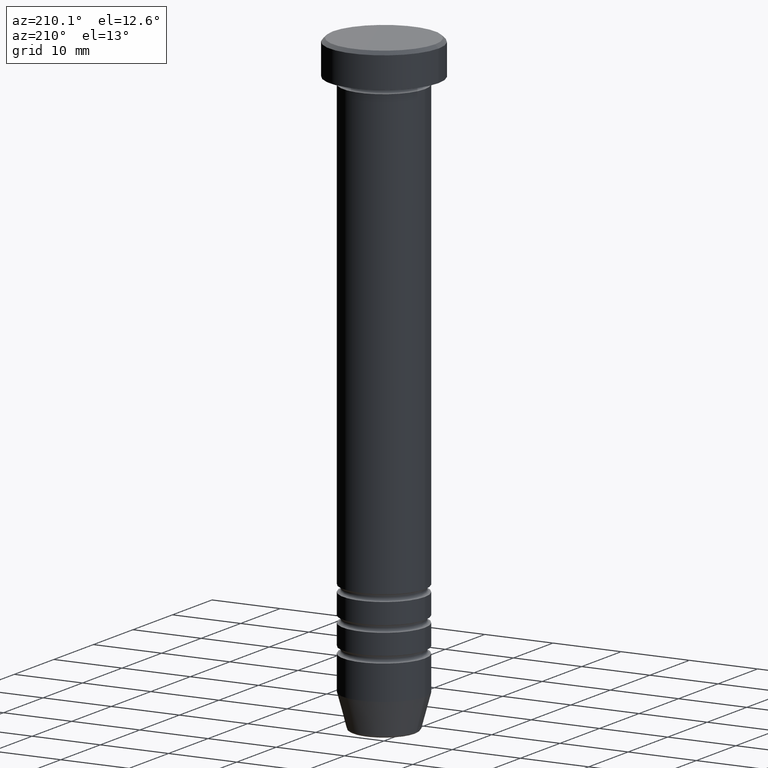
[diagram: clean part render]
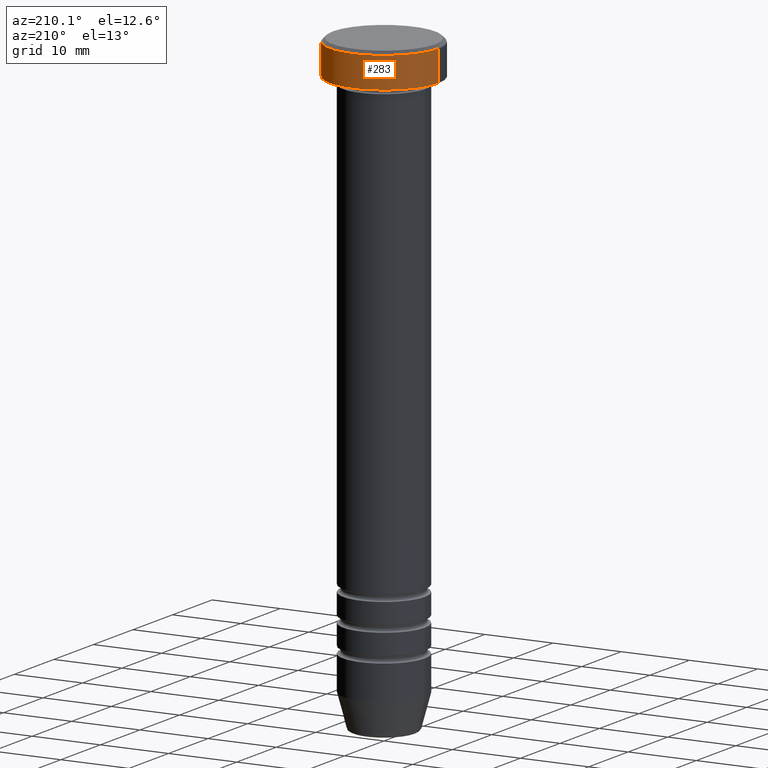
[diagram: same view with one face highlighted and labeled with its STEP entity id]
A machine part, auxiliary view. The second image highlights one B-rep face of the part: STEP entity #283.
In plain terms, the highlighted cylindrical surface (partial cylindrical patch) has radius 8 mm, axis along (-0, -0, 1).
Its self-contained STEP definition (entity closure, byte-faithful):
#19 = CARTESIAN_POINT ( 'NONE',  ( 8.000000000000000000, 0.000000000000000000, -5.000000000000000000 ) ) ;
#66 = CARTESIAN_POINT ( 'NONE',  ( 0.000000000000000000, 0.000000000000000000, 0.000000000000000000 ) ) ;
#148 = CARTESIAN_POINT ( 'NONE',  ( 0.000000000000000000, 0.000000000000000000, -0.4999999999999935052 ) ) ;
#192 = CIRCLE ( 'NONE', #804, 8.000000000000000000 ) ;
#220 = CIRCLE ( 'NONE', #962, 8.000000000000000000 ) ;
#233 = DIRECTION ( 'NONE',  ( 1.000000000000000000, 0.000000000000000000, 0.000000000000000000 ) ) ;
#246 = FACE_OUTER_BOUND ( 'NONE', #663, .T. ) ;
#248 = DIRECTION ( 'NONE',  ( -0.000000000000000000, -0.000000000000000000, 1.000000000000000000 ) ) ;
#251 = VERTEX_POINT ( 'NONE', #1052 ) ;
#271 = EDGE_CURVE ( 'NONE', #711, #251, #192, .T. ) ;
#283 = ADVANCED_FACE ( 'NONE', ( #246 ), #908, .T. ) ;
#321 = DIRECTION ( 'NONE',  ( 0.000000000000000000, 0.000000000000000000, -1.000000000000000000 ) ) ;
#347 = ORIENTED_EDGE ( 'NONE', *, *, #552, .T. ) ;
#355 = LINE ( 'NONE', #989, #716 ) ;
#383 = EDGE_CURVE ( 'NONE', #756, #251, #438, .T. ) ;
#388 = DIRECTION ( 'NONE',  ( -0.000000000000000000, -0.000000000000000000, 1.000000000000000000 ) ) ;
#438 = LINE ( 'NONE', #778, #560 ) ;
#439 = ORIENTED_EDGE ( 'NONE', *, *, #271, .T. ) ;
#552 = EDGE_CURVE ( 'NONE', #672, #711, #355, .T. ) ;
#560 = VECTOR ( 'NONE', #702, 1000.000000000000000 ) ;
#663 = EDGE_LOOP ( 'NONE', ( #777, #347, #439, #1022 ) ) ;
#672 = VERTEX_POINT ( 'NONE', #927 ) ;
#674 = DIRECTION ( 'NONE',  ( -0.000000000000000000, -0.000000000000000000, 1.000000000000000000 ) ) ;
#702 = DIRECTION ( 'NONE',  ( -0.000000000000000000, -0.000000000000000000, 1.000000000000000000 ) ) ;
#711 = VERTEX_POINT ( 'NONE', #936 ) ;
#716 = VECTOR ( 'NONE', #248, 1000.000000000000000 ) ;
#743 = AXIS2_PLACEMENT_3D ( 'NONE', #66, #388, #233 ) ;
#756 = VERTEX_POINT ( 'NONE', #19 ) ;
#777 = ORIENTED_EDGE ( 'NONE', *, *, #1048, .T. ) ;
#778 = CARTESIAN_POINT ( 'NONE',  ( 8.000000000000000000, 0.000000000000000000, 0.000000000000000000 ) ) ;
#804 = AXIS2_PLACEMENT_3D ( 'NONE', #148, #321, #972 ) ;
#905 = CARTESIAN_POINT ( 'NONE',  ( 0.000000000000000000, 0.000000000000000000, -5.000000000000000000 ) ) ;
#908 = CYLINDRICAL_SURFACE ( 'NONE', #743, 8.000000000000000000 ) ;
#927 = CARTESIAN_POINT ( 'NONE',  ( -8.000000000000000000, 9.797174393178825657E-16, -5.000000000000000000 ) ) ;
#936 = CARTESIAN_POINT ( 'NONE',  ( -8.000000000000000000, 9.797174393178825657E-16, -0.4999999999999935052 ) ) ;
#962 = AXIS2_PLACEMENT_3D ( 'NONE', #905, #674, #1060 ) ;
#972 = DIRECTION ( 'NONE',  ( 1.000000000000000000, 0.000000000000000000, 0.000000000000000000 ) ) ;
#989 = CARTESIAN_POINT ( 'NONE',  ( -8.000000000000000000, 9.797174393178825657E-16, 0.000000000000000000 ) ) ;
#1022 = ORIENTED_EDGE ( 'NONE', *, *, #383, .F. ) ;
#1048 = EDGE_CURVE ( 'NONE', #756, #672, #220, .T. ) ;
#1052 = CARTESIAN_POINT ( 'NONE',  ( 8.000000000000000000, 0.000000000000000000, -0.4999999999999935052 ) ) ;
#1060 = DIRECTION ( 'NONE',  ( 1.000000000000000000, 0.000000000000000000, 0.000000000000000000 ) ) ;